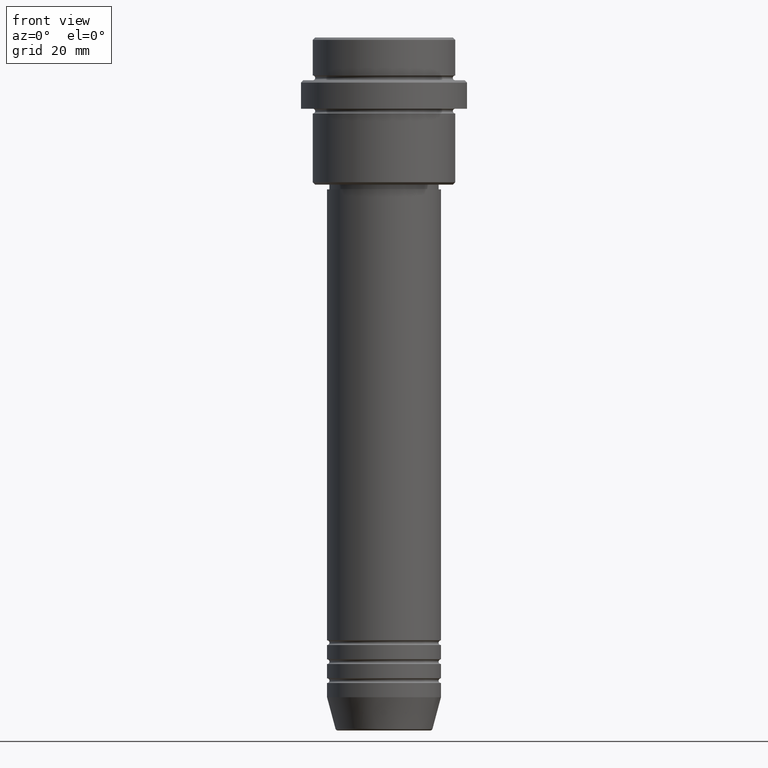
[diagram: clean part render]
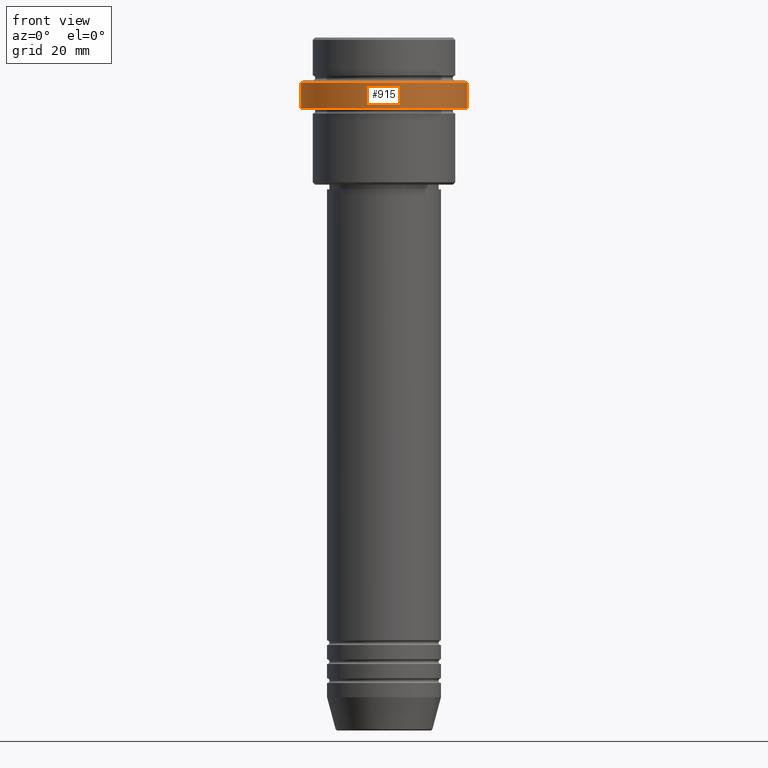
[diagram: same view with one face highlighted and labeled with its STEP entity id]
A machine part, front view. The second image highlights one B-rep face of the part: STEP entity #915.
In plain terms, the highlighted cylindrical surface (partial cylindrical patch) has radius 17.5 mm, axis along (-0, -0, 1).
Its self-contained STEP definition (entity closure, byte-faithful):
#2 = FACE_OUTER_BOUND ( 'NONE', #621, .T. ) ;
#8 = DIRECTION ( 'NONE',  ( -0.000000000000000000, -0.000000000000000000, 1.000000000000000000 ) ) ;
#85 = AXIS2_PLACEMENT_3D ( 'NONE', #681, #1323, #572 ) ;
#108 = CIRCLE ( 'NONE', #85, 17.50000000000000000 ) ;
#111 = DIRECTION ( 'NONE',  ( 1.000000000000000000, 0.000000000000000000, 0.000000000000000000 ) ) ;
#117 = DIRECTION ( 'NONE',  ( -0.000000000000000000, -0.000000000000000000, 1.000000000000000000 ) ) ;
#155 = DIRECTION ( 'NONE',  ( -0.000000000000000000, -0.000000000000000000, 1.000000000000000000 ) ) ;
#170 = CARTESIAN_POINT ( 'NONE',  ( -17.50000000000000000, 2.143131898507868248E-15, -9.499999999999987566 ) ) ;
#267 = CIRCLE ( 'NONE', #1112, 17.50000000000000000 ) ;
#298 = CARTESIAN_POINT ( 'NONE',  ( 17.50000000000000000, 0.000000000000000000, -14.99999999999998757 ) ) ;
#351 = LINE ( 'NONE', #1344, #750 ) ;
#502 = CARTESIAN_POINT ( 'NONE',  ( 0.000000000000000000, 0.000000000000000000, -14.99999999999998757 ) ) ;
#557 = ORIENTED_EDGE ( 'NONE', *, *, #892, .F. ) ;
#572 = DIRECTION ( 'NONE',  ( 1.000000000000000000, 0.000000000000000000, 0.000000000000000000 ) ) ;
#598 = ORIENTED_EDGE ( 'NONE', *, *, #1153, .T. ) ;
#605 = VERTEX_POINT ( 'NONE', #1169 ) ;
#621 = EDGE_LOOP ( 'NONE', ( #557, #778, #629, #598 ) ) ;
#629 = ORIENTED_EDGE ( 'NONE', *, *, #993, .T. ) ;
#681 = CARTESIAN_POINT ( 'NONE',  ( 0.000000000000000000, 0.000000000000000000, -9.499999999999987566 ) ) ;
#707 = DIRECTION ( 'NONE',  ( -0.000000000000000000, -0.000000000000000000, 1.000000000000000000 ) ) ;
#721 = DIRECTION ( 'NONE',  ( 1.000000000000000000, 0.000000000000000000, 0.000000000000000000 ) ) ;
#750 = VECTOR ( 'NONE', #8, 1000.000000000000000 ) ;
#762 = VERTEX_POINT ( 'NONE', #298 ) ;
#778 = ORIENTED_EDGE ( 'NONE', *, *, #1031, .T. ) ;
#782 = VERTEX_POINT ( 'NONE', #1056 ) ;
#892 = EDGE_CURVE ( 'NONE', #782, #1348, #351, .T. ) ;
#915 = ADVANCED_FACE ( 'NONE', ( #2 ), #977, .T. ) ;
#929 = CARTESIAN_POINT ( 'NONE',  ( 17.50000000000000000, 0.000000000000000000, 0.000000000000000000 ) ) ;
#950 = VECTOR ( 'NONE', #707, 1000.000000000000000 ) ;
#977 = CYLINDRICAL_SURFACE ( 'NONE', #1410, 17.50000000000000000 ) ;
#993 = EDGE_CURVE ( 'NONE', #762, #605, #1255, .T. ) ;
#1031 = EDGE_CURVE ( 'NONE', #782, #762, #267, .T. ) ;
#1056 = CARTESIAN_POINT ( 'NONE',  ( -17.50000000000000000, 2.143131898507868248E-15, -14.99999999999998757 ) ) ;
#1112 = AXIS2_PLACEMENT_3D ( 'NONE', #502, #155, #721 ) ;
#1153 = EDGE_CURVE ( 'NONE', #605, #1348, #108, .T. ) ;
#1169 = CARTESIAN_POINT ( 'NONE',  ( 17.50000000000000000, 0.000000000000000000, -9.499999999999987566 ) ) ;
#1211 = CARTESIAN_POINT ( 'NONE',  ( 0.000000000000000000, 0.000000000000000000, 0.000000000000000000 ) ) ;
#1255 = LINE ( 'NONE', #929, #950 ) ;
#1323 = DIRECTION ( 'NONE',  ( 0.000000000000000000, 0.000000000000000000, -1.000000000000000000 ) ) ;
#1344 = CARTESIAN_POINT ( 'NONE',  ( -17.50000000000000000, 2.143131898507868248E-15, 0.000000000000000000 ) ) ;
#1348 = VERTEX_POINT ( 'NONE', #170 ) ;
#1410 = AXIS2_PLACEMENT_3D ( 'NONE', #1211, #117, #111 ) ;